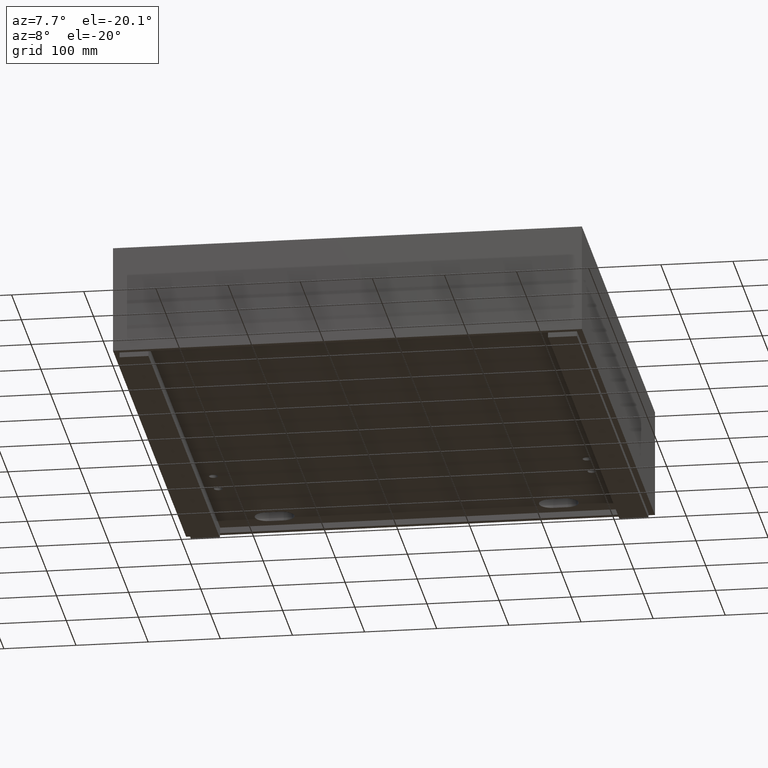
[diagram: clean part render]
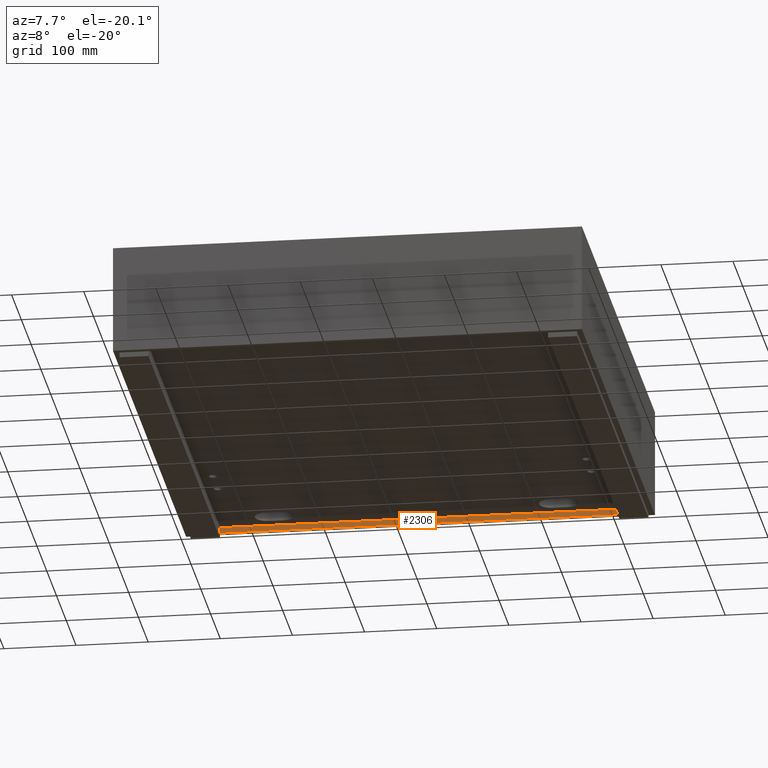
[diagram: same view with one face highlighted and labeled with its STEP entity id]
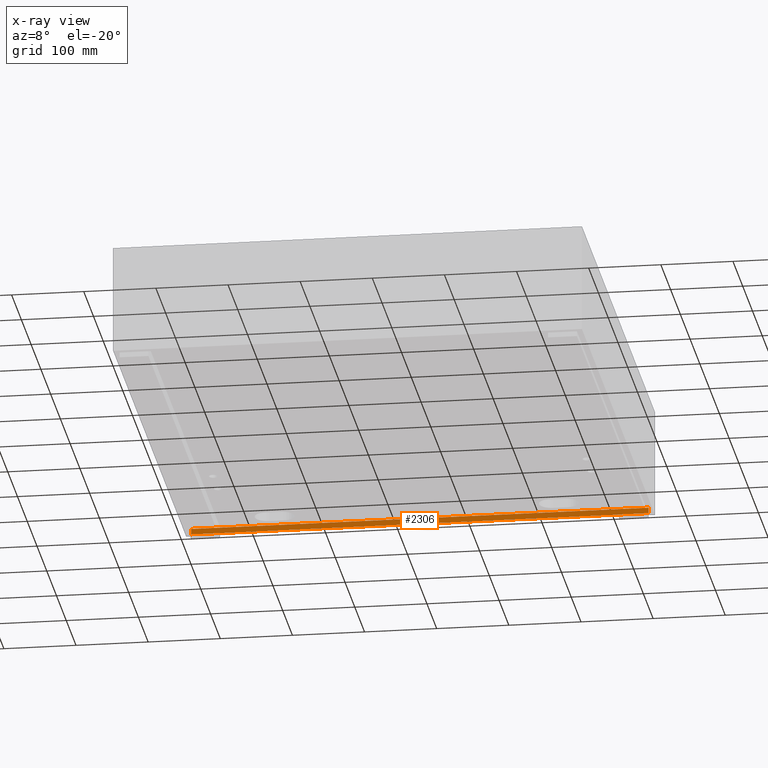
[diagram: x-ray of the same camera — body ghosted, the highlighted face saturated]
A machine part, auxiliary view. The second image highlights one B-rep face of the part: STEP entity #2306.
The next image is the same camera in x-ray: the body ghosted, the highlighted face saturated — about 0% of this face is hidden behind the body in this view.
In plain terms, the highlighted planar face has unit normal (-0, 1, 0).
Its self-contained STEP definition (entity closure, byte-faithful):
#382 = CARTESIAN_POINT ( 'NONE',  ( 0.0000000000000000000, 741.9999000000000251, -150.0000000000000284 ) ) ;
#406 = VERTEX_POINT ( 'NONE', #5985 ) ;
#615 = EDGE_CURVE ( 'NONE', #963, #406, #7015, .T. ) ;
#963 = VERTEX_POINT ( 'NONE', #8349 ) ;
#1063 = DIRECTION ( 'NONE',  ( -6.702531737349360655E-50, 1.000000000000000000, 1.734723475976806324E-18 ) ) ;
#1412 = VERTEX_POINT ( 'NONE', #6938 ) ;
#1686 = LINE ( 'NONE', #4663, #6638 ) ;
#1807 = FACE_OUTER_BOUND ( 'NONE', #7780, .T. ) ;
#2306 = ADVANCED_FACE ( 'NONE', ( #1807 ), #4773, .F. ) ;
#2654 = DIRECTION ( 'NONE',  ( -1.931873243824992518E-32, -1.734723475976806324E-18, 1.000000000000000000 ) ) ;
#2892 = DIRECTION ( 'NONE',  ( 1.000000000000000000, -1.925929944387235853E-34, 1.281026566875180756E-16 ) ) ;
#3121 = EDGE_CURVE ( 'NONE', #4049, #406, #1686, .T. ) ;
#3368 = DIRECTION ( 'NONE',  ( -1.000000000000000000, 0.0000000000000000000, 1.931873243824993339E-32 ) ) ;
#3849 = CARTESIAN_POINT ( 'NONE',  ( 8.000000000000007105, 741.9999000000000251, -142.0000000000001705 ) ) ;
#4049 = VERTEX_POINT ( 'NONE', #3849 ) ;
#4053 = DIRECTION ( 'NONE',  ( -1.931873243824992518E-32, -1.734723475976806324E-18, 1.000000000000000000 ) ) ;
#4663 = CARTESIAN_POINT ( 'NONE',  ( 7.999999999999952038, 741.9999000000000251, -150.0000000000000284 ) ) ;
#4773 = PLANE ( 'NONE',  #6643 ) ;
#5276 = ORIENTED_EDGE ( 'NONE', *, *, #3121, .T. ) ;
#5298 = VECTOR ( 'NONE', #2892, 1000.000000000000000 ) ;
#5985 = CARTESIAN_POINT ( 'NONE',  ( 7.999999999999952038, 741.9999000000000251, -150.0000000000000284 ) ) ;
#6307 = LINE ( 'NONE', #9268, #9498 ) ;
#6471 = VECTOR ( 'NONE', #3368, 1000.000000000000000 ) ;
#6544 = EDGE_CURVE ( 'NONE', #963, #1412, #6307, .T. ) ;
#6554 = LINE ( 'NONE', #9508, #5298 ) ;
#6638 = VECTOR ( 'NONE', #7569, 1000.000000000000000 ) ;
#6643 = AXIS2_PLACEMENT_3D ( 'NONE', #7687, #1063, #4053 ) ;
#6938 = CARTESIAN_POINT ( 'NONE',  ( 642.0000000000001137, 741.9999000000000251, -142.0000000000000853 ) ) ;
#7015 = LINE ( 'NONE', #382, #6471 ) ;
#7569 = DIRECTION ( 'NONE',  ( -1.272130549049657961E-16, 1.734723475976806324E-18, -1.000000000000000000 ) ) ;
#7687 = CARTESIAN_POINT ( 'NONE',  ( 0.0000000000000000000, 741.9999000000000251, 4.163336342344337027E-14 ) ) ;
#7780 = EDGE_LOOP ( 'NONE', ( #8889, #7806, #5276, #9532 ) ) ;
#7806 = ORIENTED_EDGE ( 'NONE', *, *, #8410, .F. ) ;
#8349 = CARTESIAN_POINT ( 'NONE',  ( 642.0000000000001137, 741.9999000000000251, -150.0000000000000284 ) ) ;
#8410 = EDGE_CURVE ( 'NONE', #4049, #1412, #6554, .T. ) ;
#8889 = ORIENTED_EDGE ( 'NONE', *, *, #6544, .T. ) ;
#9268 = CARTESIAN_POINT ( 'NONE',  ( 642.0000000000001137, 741.9999000000000251, 2.775557561562891351E-14 ) ) ;
#9498 = VECTOR ( 'NONE', #2654, 1000.000000000000000 ) ;
#9508 = CARTESIAN_POINT ( 'NONE',  ( 650.0000000000000000, 741.9999000000000251, -142.0000000000000853 ) ) ;
#9532 = ORIENTED_EDGE ( 'NONE', *, *, #615, .F. ) ;